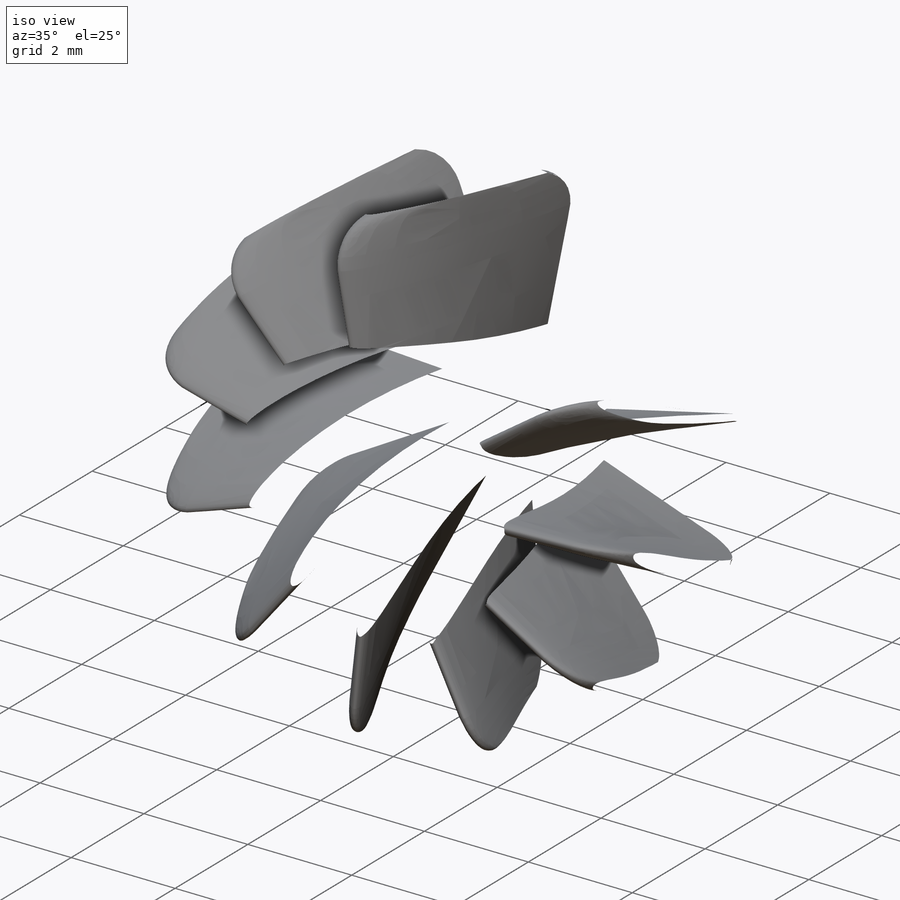
[diagram: iso view]
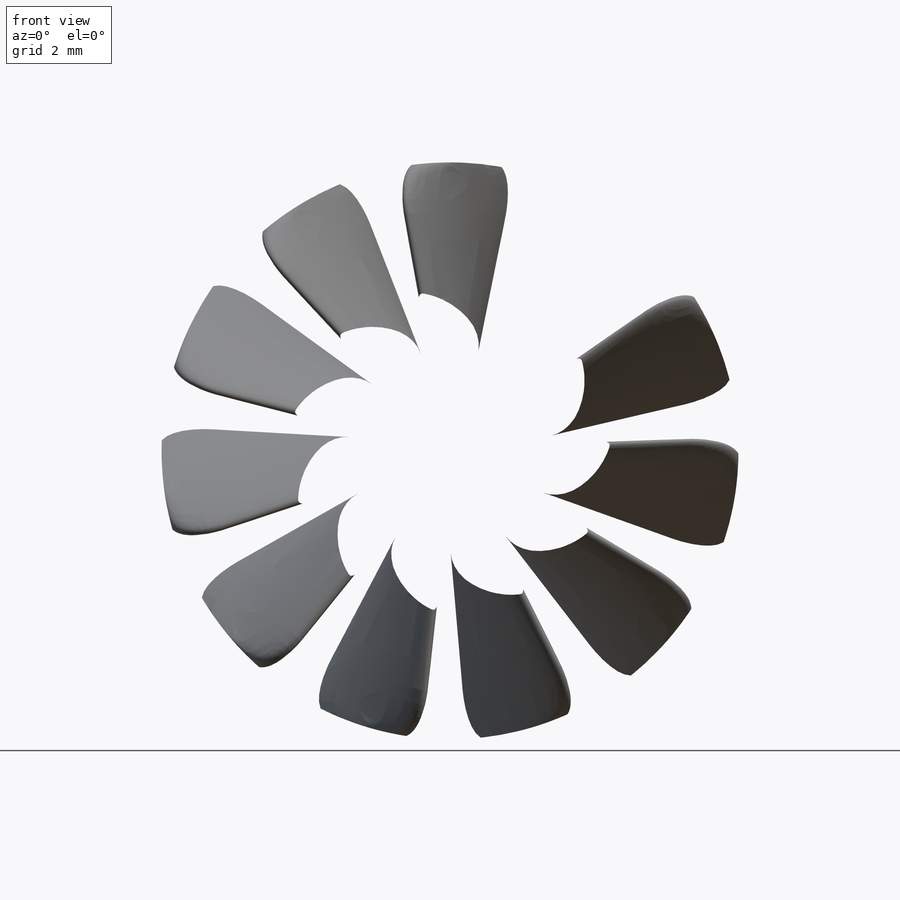
[diagram: front view]
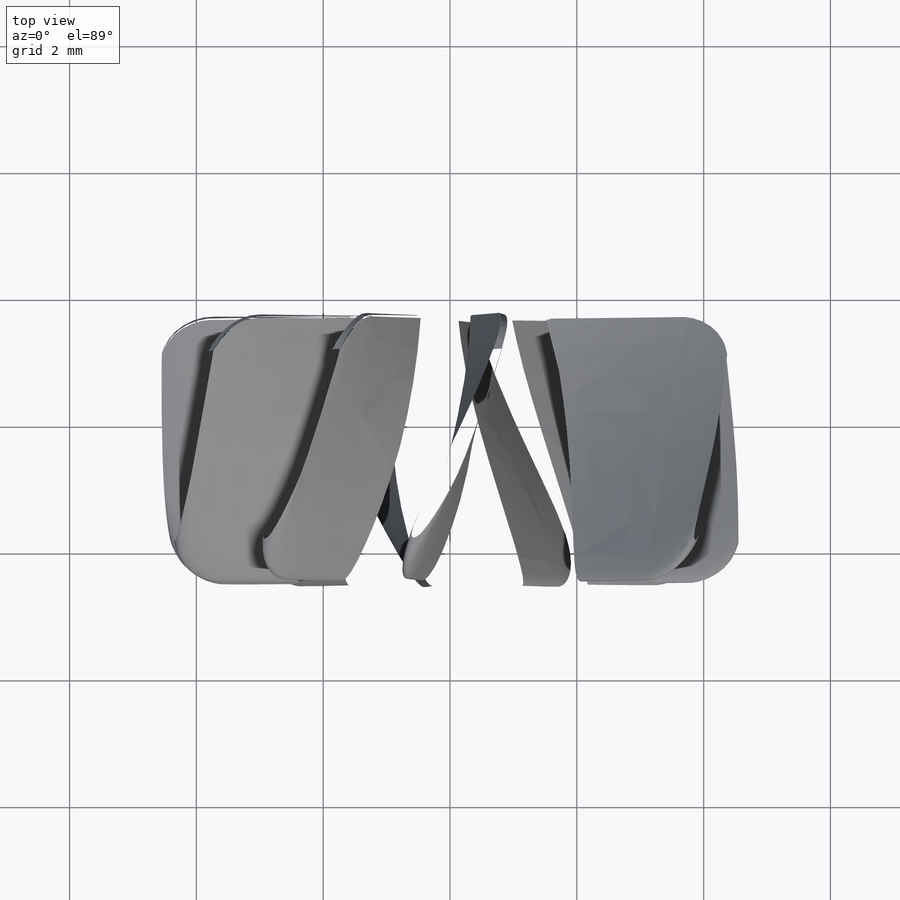
[diagram: top view]
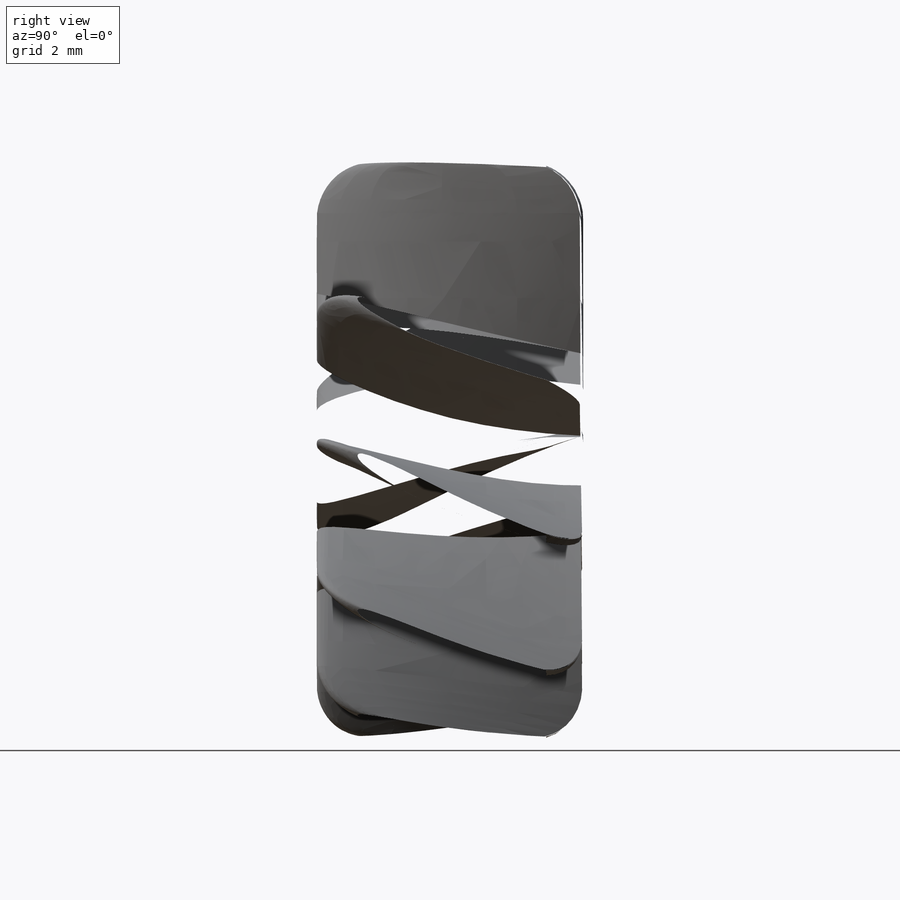
[diagram: right view]
SOLIDWORKS PART (.sldprt)
format: sldprt  version: not decoded by parser v0  size: 5,542,912 bytes
history: native  units: mm
features: sketch x27, plane x13, surface_op x4, fillet x3, pattern_circular x2, material x1, revolve x1, cut_extrude x1 (+13 scaffold rows collapsed)
feature tree (65):
  scaffold x13  (default folders/planes/origin — collapsed)
  material  "Manganese Bronze"
  plane  "Plane1"  Offset=2.116667mm
  sketch  "Sketch6"
  sketch  "Sketch1"  dims[D1=22.0726mm]
  sketch  "Sketch2"
  sketch  "Sketch3"
  surface_op  "Surface-Extrude1"
  sketch  "Sketch5"  dims[D1=5.0deg D2=60.0deg]
  surface_op  "Surface-Extrude2"
  sketch  "3DSketch1"
  sketch  "3DSketch2"
  plane  "Plane2"
  plane  "Plane3"
  plane  "Plane4"
  plane  "Plane5"
  plane  "Plane6"
  plane  "Plane7"
  plane  "Plane8"
  plane  "Plane9"  Offset=0.2032mm
  sketch  "Sketch7"  dims[c1.D1=~140.282165mm c2.D1=18.0deg c2.D8=18.0deg c3.D1=~16.858469mm c3.D2=~47.974293mm c3.D3=~67.513055mm c3.D4=~87.051818mm c3.D5=~106.590581mm c3.D6=~126.129344mm c3.D7=~140.282047mm]
  sketch  "Sketch8"  dims[c1.D1=~13.824702mm c2.D1=~74.752643deg c2.D2=12.7mm]
  sketch  "Sketch9"  dims[c1.D1=~113.152582deg c2.D1=12.7mm c3.D1=~162.623009deg]
  sketch  "Sketch10"  dims[c1.D1=~117.63659deg c2.D1=12.7mm c3.D1=~159.448777deg]
  sketch  "Sketch11"  dims[c1.D1=~145.975352deg c2.D1=12.7mm c3.D1=~153.012846deg]
  sketch  "Sketch12"  dims[c1.D1=12.7mm c2.D1=~136.465774deg c3.D1=12.7mm c4.D1=~144.372898deg]
  sketch  "Sketch13"  dims[c1.D1=12.7mm c2.D1=~249.702469deg c3.D1=12.7mm c4.D1=~130.120973deg]
  sketch  "Sketch15"  dims[c1.D1=12.7mm c2.D1=~14.036243deg]
  surface_op  "Surface-Extrude3"
  sketch  "3DSketch3"  dims[D1=6.35mm]
  plane  "Plane10"
  plane  "Plane11"
  sketch  "Sketch17"  dims[D1=0.0762mm]
  sketch  "Sketch18"  dims[D1=0.7874mm D2=0.3302mm]
  fillet  "Fillet9"  Radius=0.0381mm
  fillet  "Fillet10"  Radius=0.1524mm
  pattern_circular  "CirPattern6"  Count=7 Angle=360deg
  sketch  "Sketch19"  dims[D1=~4.375598mm]
  plane  "Plane12"
  sketch  "Sketch21"  dims[D1=~5.351499mm]
  sketch  "Sketch22"  dims[D1=90.0deg]
  plane  "Plane13"
  sketch  "Sketch23"
  sketch  "Sketch24"  dims[D1=0.889mm D2=0.889mm]
  surface_op  "Surface-Extrude4"
  sketch  "3DSketch4"
  sketch  "Sketch25"  dims[D1=0.127mm]
  sketch  "Sketch26"  dims[c1.D1=0.127mm c1.D0=0.0mm c2.D1=0.0381mm c2.D0=0.0mm c3.D1=0.0381mm]
  sketch  "Sketch28"
  revolve  "Revolve1"  Angle=360deg
  fillet  "Fillet11"  Radius=0.1524mm
  pattern_circular  "CirPattern7"  Count=11 Angle=360deg
  cut_extrude  "Cut-Extrude2"  [1 undecoded]
decode coverage: 25 of 38 modeling features carry decoded parameters
note: ~ marks probable driven/reference dimensions
note: 1 parameter value undecoded
note: suppression state not decoded; provenance and decode notes live in map.json
